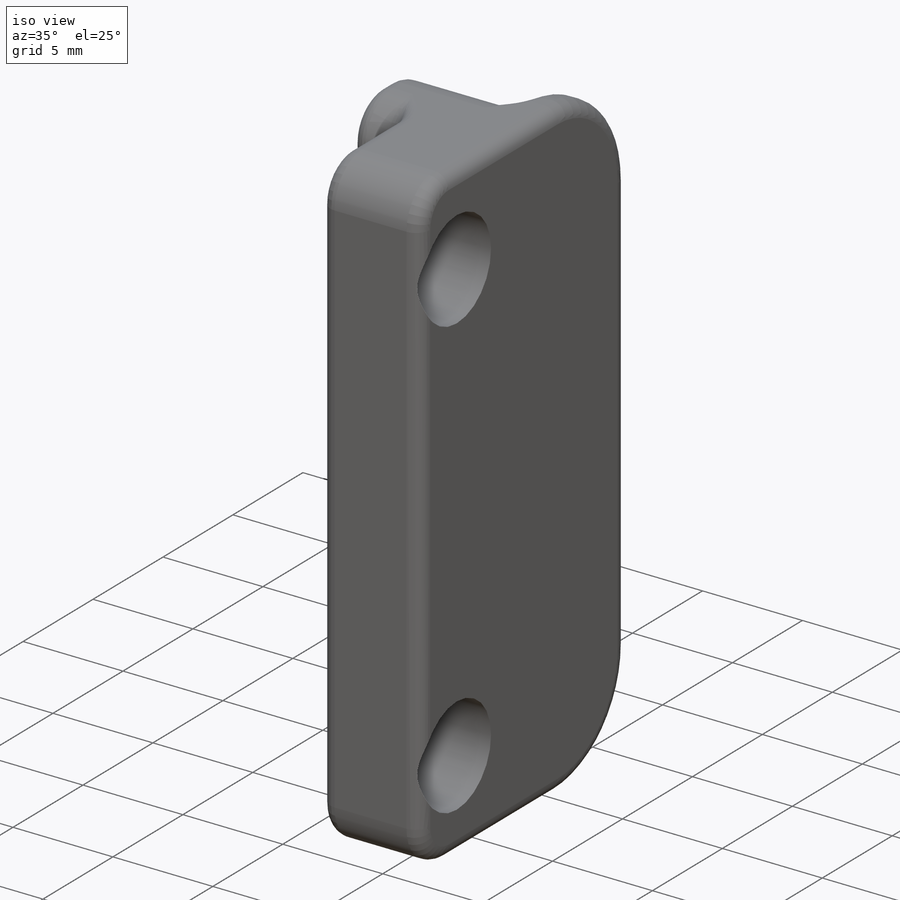
[diagram: iso view]
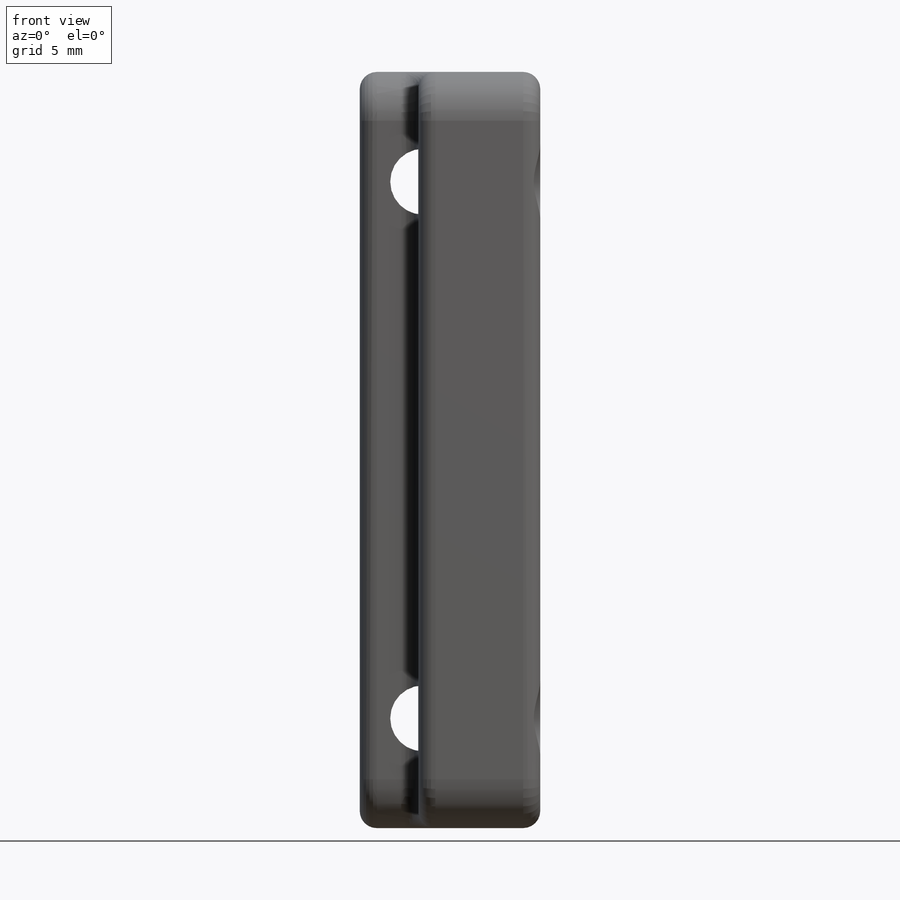
[diagram: front view]
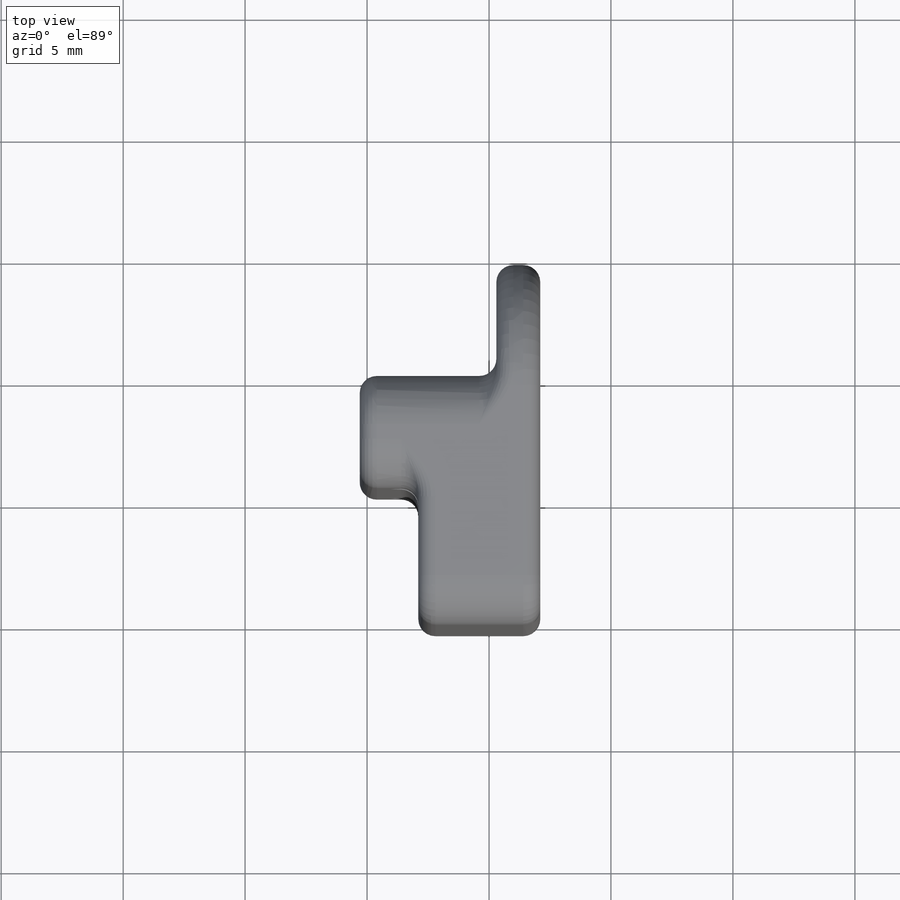
[diagram: top view]
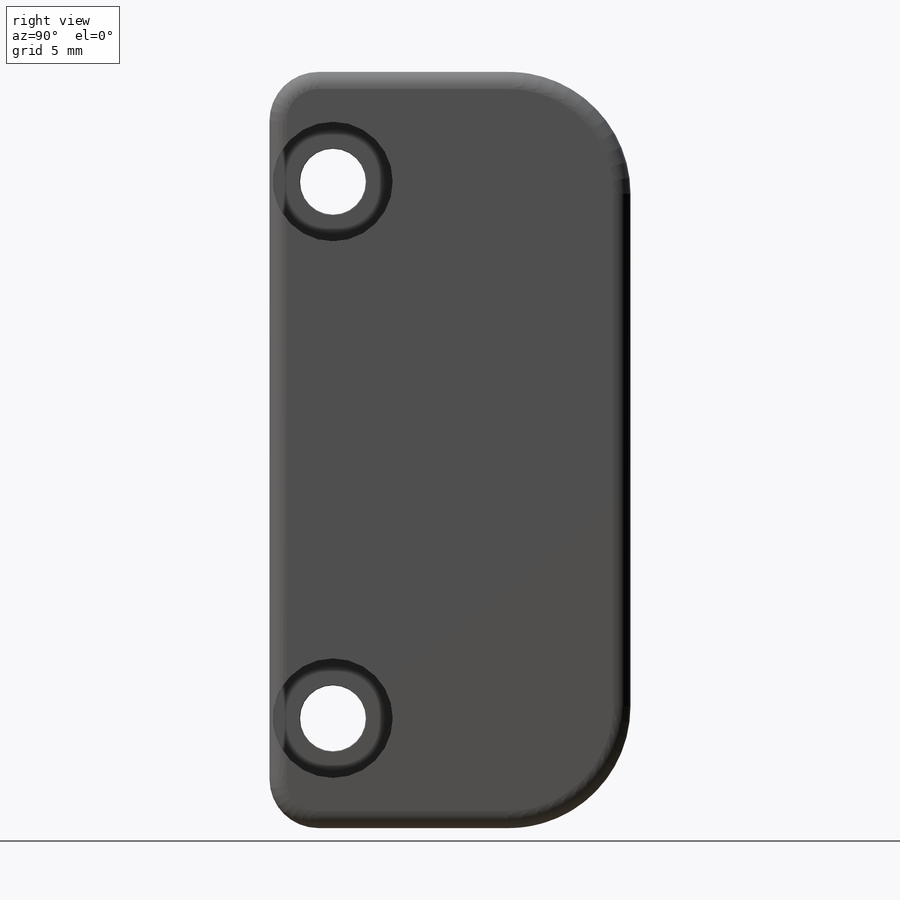
[diagram: right view]
SOLIDWORKS PART (.sldprt)
format: sldprt  version: not decoded by parser v0  size: 2,297,856 bytes
history: native  units: mm
features: fillet x15, sketch x11, plane x11, cut_extrude x2, hole x2, material x1, extrude x1, mirror x1 (+15 scaffold rows collapsed; 3 parser-record rows omitted)
feature tree (62):
  scaffold x15  (default folders/planes/origin — collapsed)
  material  "Polyamide"
  parser-record x3  (decoder bookkeeping rows leaked as tree rows — omitted from the tree; the rows remain in map.json)
  sketch  "Sketch2"  dims[D8=28.0mm D13=2.7mm D1=61.1mm D2=13.0mm D3=20.1mm D4=14.5mm D5=17.3mm D6=42.5mm D7=45.3mm D9=11.0mm D10=22.0mm D11=22.0mm D12=4.0mm]
  sketch  "Sketch3"  dims[c1.D1=4.5mm c1.D2=17.0mm c2.D1=17.0mm c2.D2=20.5mm c2.D3=4.5mm]
  plane  "Plane11"  Offset=40mm
  plane  "Plane1"  Offset=40mm
  sketch  "Sketch1"  dims[D10=2.7mm D13=12.5mm D1=50.6mm D2=12.5mm D3=17.8mm D4=33.0mm D5=12.2mm D6=4.0mm D7=17.0mm D8=17.0mm D9=8.5mm D11=15.0mm D12=35.8mm]
  sketch  "Sketch4"  dims[D1=17.75mm D2=15.0mm D3=4.5mm]
  plane  "Plane2"
  plane  "Plane3"
  sketch  "Sketch5"  dims[D1=4.5mm D2=4.5mm D3=0.2mm D4=4.5mm D5=0.5mm]
  plane  "Plane4"
  plane  "Plane7"
  extrude  "Boss-Extrude1"  Depth=0.2mm
  sketch  "Sketch6"  dims[D1=0.1mm D2=0.2mm D3=0.2mm D4=0.1mm]
  cut_extrude  "Cut-Extrude1"  [1 undecoded]
  plane  "Plane5"  Offset=10mm
  plane  "Plane8"
  hole  "CBORE for M2.5 Hex Socket Head Cap Screw1"  Diameter=2.7mm Depth=14.6mm
  sketch  "Sketch8"
  sketch  "Sketch7"  dims[hole-wizard template sketch: 42 standard entries collapsed; hole parameters kept: c12.Thru Hole Depth=14.6mm c12.C'Bore Dia.=4.9mm c12.C'Bore Depth=8.5mm c12.Mid C'Sink Dia.=2.75mm c12.D6=~5.388154mm c12.Mid C'Sink Angle=90.0deg]
  plane  "Plane6"  Offset=20mm
  hole  "M2.5 Clearance Hole1"  Diameter=2.7mm Depth=9.199mm
  sketch  "Sketch10"
  sketch  "Sketch9"  dims[hole-wizard template sketch: 47 standard entries collapsed; hole parameters kept: c15.Hole Depth=9.199mm c15.D3=~14.816244mm c15.Drill Angle=180.0deg]
  plane  "Plane9"  Offset=0.6mm
  plane  "Plane10"  Offset=1mm
  sketch  "Sketch11"  dims[c1.D3=5.3mm c1.D5=2.7mm c1.D6=~2.156936mm c1.D1=5.15mm c1.D2=5.3mm c2.D3=~3.059956mm c3.D3=90.0deg c4.D3=4.5mm c4.D4=4.5mm c4.D2=5.15mm c4.D1=4.92mm c5.D3=5.12mm c5.D2=0.05mm]
  cut_extrude  "Cut-Extrude2"  Depth=2mm
  fillet  "Fillet1"  Radius=5mm
  fillet  "Fillet2"  Radius=8mm
  fillet  "Fillet3"  Radius=2mm
  fillet  "Fillet4"  Radius=2mm
  fillet  "Fillet5"  Radius=0.5mm
  fillet  "Fillet6"  Radius=0.7mm
  fillet  "Fillet7"  Radius=2mm
  fillet  "Fillet8"  Radius=0.7mm
  fillet  "Fillet9"  Radius=0.5mm
  fillet  "Fillet10"  Radius=0.6mm
  fillet  "Fillet11"  Radius=2mm
  fillet  "Fillet12"  Radius=0.7mm
  fillet  "Fillet13"  Radius=1.9mm
  fillet  "Fillet14"  Radius=0.7mm
  fillet  "Fillet15"  Radius=0.7mm
  mirror  "Mirror2"
decode coverage: 28 of 32 modeling features carry decoded parameters
note: ~ marks probable driven/reference dimensions
note: 1 parameter value undecoded
note: suppression state not decoded; provenance and decode notes live in map.json
